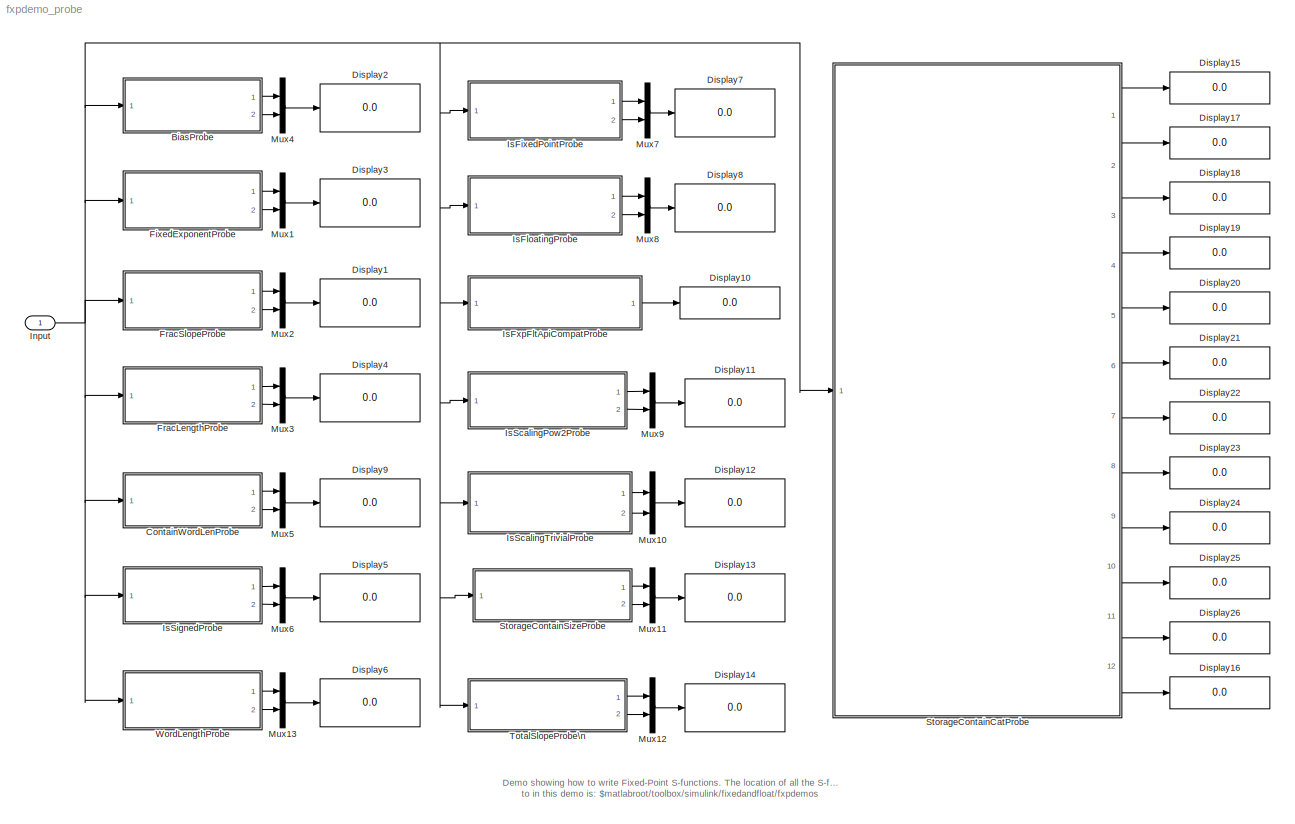
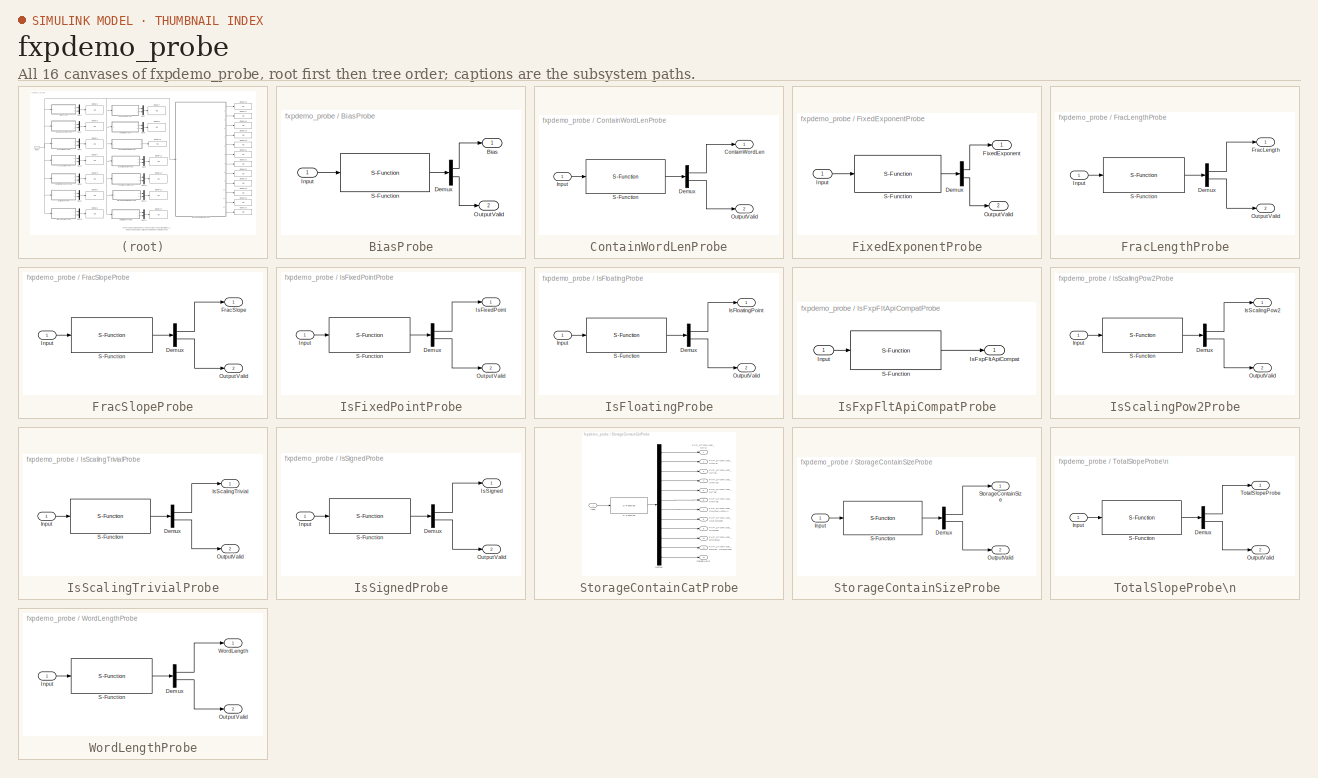
[diagram: thumbnail index - all 16 canvases of the model, root first then tree order]
MODEL fxpdemo_probe
KIND model
CONFIG AbsTol = auto
CONFIG FixedStep = auto
CONFIG MaxStep = auto
CONFIG MinStep = auto
CONFIG RelTol = 1e-3
CONFIG Solver = ode45
CONFIG SolverMode = Auto
CONFIG StartTime = 0.0
CONFIG StopTime = 10.0
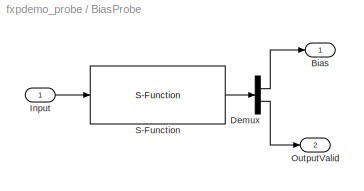
BLOCK [SubSystem] BiasProbe
  Ports = [1, 2]
  TreatAsAtomicUnit = off
BLOCK [Outport] BiasProbe/Bias
BLOCK [Demux] BiasProbe/Demux
  Outputs = 2
  Ports = [1, 2]
BLOCK [Inport] BiasProbe/Input
BLOCK [Outport] BiasProbe/OutputValid
  Port = 2
BLOCK [S-Function] BiasProbe/S-Function
  FunctionName = sfun_user_fxp_BiasProbe
  Ports = [1, 1]
BLOCK [SubSystem] ContainWordLenProbe
  Ports = [1, 2]
  TreatAsAtomicUnit = off
BLOCK [Outport] ContainWordLenProbe/ContainWordLen
BLOCK [Demux] ContainWordLenProbe/Demux
  Outputs = 2
  Ports = [1, 2]
BLOCK [Inport] ContainWordLenProbe/Input
BLOCK [Outport] ContainWordLenProbe/OutputValid
  Port = 2
BLOCK [S-Function] ContainWordLenProbe/S-Function
  FunctionName = sfun_user_fxp_ContainWordLenProbe
  Ports = [1, 1]
BLOCK [Display] Display1
  Decimation = 1
  Ports = [1]
BLOCK [Display] Display10
  Decimation = 1
  Ports = [1]
BLOCK [Display] Display11
  Decimation = 1
  Ports = [1]
BLOCK [Display] Display12
  Decimation = 1
  Ports = [1]
BLOCK [Display] Display13
  Decimation = 1
  Ports = [1]
BLOCK [Display] Display14
  Decimation = 1
  Ports = [1]
BLOCK [Display] Display15
  Decimation = 1
  Ports = [1]
BLOCK [Display] Display16
  Decimation = 1
  Ports = [1]
BLOCK [Display] Display17
  Decimation = 1
  Ports = [1]
BLOCK [Display] Display18
  Decimation = 1
  Ports = [1]
BLOCK [Display] Display19
  Decimation = 1
  Ports = [1]
BLOCK [Display] Display2
  Decimation = 1
  Ports = [1]
BLOCK [Display] Display20
  Decimation = 1
  Ports = [1]
BLOCK [Display] Display21
  Decimation = 1
  Ports = [1]
BLOCK [Display] Display22
  Decimation = 1
  Ports = [1]
BLOCK [Display] Display23
  Decimation = 1
  Ports = [1]
BLOCK [Display] Display24
  Decimation = 1
  Ports = [1]
BLOCK [Display] Display25
  Decimation = 1
  Ports = [1]
BLOCK [Display] Display26
  Decimation = 1
  Ports = [1]
BLOCK [Display] Display3
  Decimation = 1
  Ports = [1]
BLOCK [Display] Display4
  Decimation = 1
  Ports = [1]
BLOCK [Display] Display5
  Decimation = 1
  Ports = [1]
BLOCK [Display] Display6
  Decimation = 1
  Ports = [1]
BLOCK [Display] Display7
  Decimation = 1
  Ports = [1]
BLOCK [Display] Display8
  Decimation = 1
  Ports = [1]
BLOCK [Display] Display9
  Decimation = 1
  Ports = [1]
BLOCK [SubSystem] FixedExponentProbe
  Ports = [1, 2]
  TreatAsAtomicUnit = off
BLOCK [Demux] FixedExponentProbe/Demux
  Outputs = 2
  Ports = [1, 2]
BLOCK [Outport] FixedExponentProbe/FixedExponent
BLOCK [Inport] FixedExponentProbe/Input
BLOCK [Outport] FixedExponentProbe/OutputValid
  Port = 2
BLOCK [S-Function] FixedExponentProbe/S-Function
  FunctionName = sfun_user_fxp_FixedExponentProbe
  Ports = [1, 1]
BLOCK [SubSystem] FracLengthProbe
  Ports = [1, 2]
  TreatAsAtomicUnit = off
BLOCK [Demux] FracLengthProbe/Demux
  Outputs = 2
  Ports = [1, 2]
BLOCK [Outport] FracLengthProbe/FracLength
BLOCK [Inport] FracLengthProbe/Input
BLOCK [Outport] FracLengthProbe/OutputValid
  Port = 2
BLOCK [S-Function] FracLengthProbe/S-Function
  FunctionName = sfun_user_fxp_FracLengthProbe
  Ports = [1, 1]
BLOCK [SubSystem] FracSlopeProbe
  Ports = [1, 2]
  TreatAsAtomicUnit = off
BLOCK [Demux] FracSlopeProbe/Demux
  Outputs = 2
  Ports = [1, 2]
BLOCK [Outport] FracSlopeProbe/FracSlope
BLOCK [Inport] FracSlopeProbe/Input
BLOCK [Outport] FracSlopeProbe/OutputValid
  Port = 2
BLOCK [S-Function] FracSlopeProbe/S-Function
  FunctionName = sfun_user_fxp_FracSlopeProbe
  Ports = [1, 1]
BLOCK [Inport] Input
  DataType = Specify via dialog
  OutDataType = sfix(33)
  OutScaling = [1.1*2^-3 10]
  ShowAdditionalParam = on
BLOCK [SubSystem] IsFixedPointProbe
  Ports = [1, 2]
  TreatAsAtomicUnit = off
BLOCK [Demux] IsFixedPointProbe/Demux
  Outputs = 2
  Ports = [1, 2]
BLOCK [Inport] IsFixedPointProbe/Input
BLOCK [Outport] IsFixedPointProbe/IsFixedPoint
BLOCK [Outport] IsFixedPointProbe/OutputValid
  Port = 2
BLOCK [S-Function] IsFixedPointProbe/S-Function
  FunctionName = sfun_user_fxp_IsFixedPointProbe
  Ports = [1, 1]
BLOCK [SubSystem] IsFloatingProbe
  Ports = [1, 2]
  TreatAsAtomicUnit = off
BLOCK [Demux] IsFloatingProbe/Demux
  Outputs = 2
  Ports = [1, 2]
BLOCK [Inport] IsFloatingProbe/Input
BLOCK [Outport] IsFloatingProbe/IsFloatingPoint
BLOCK [Outport] IsFloatingProbe/OutputValid
  Port = 2
BLOCK [S-Function] IsFloatingProbe/S-Function
  FunctionName = sfun_user_fxp_IsFloatingPointProbe
  Ports = [1, 1]
BLOCK [SubSystem] IsFxpFltApiCompatProbe
  Ports = [1, 1]
  TreatAsAtomicUnit = off
BLOCK [Inport] IsFxpFltApiCompatProbe/Input
BLOCK [Outport] IsFxpFltApiCompatProbe/IsFxpFltApiCompat
BLOCK [S-Function] IsFxpFltApiCompatProbe/S-Function
  FunctionName = sfun_user_fxp_IsFxpFltApiCompatProbe
  Ports = [1, 1]
BLOCK [SubSystem] IsScalingPow2Probe
  Ports = [1, 2]
  TreatAsAtomicUnit = off
BLOCK [Demux] IsScalingPow2Probe/Demux
  Outputs = 2
  Ports = [1, 2]
BLOCK [Inport] IsScalingPow2Probe/Input
BLOCK [Outport] IsScalingPow2Probe/IsScalingPow2
BLOCK [Outport] IsScalingPow2Probe/OutputValid
  Port = 2
BLOCK [S-Function] IsScalingPow2Probe/S-Function
  FunctionName = sfun_user_fxp_IsScalingPow2Probe
  Ports = [1, 1]
BLOCK [SubSystem] IsScalingTrivialProbe
  Ports = [1, 2]
  TreatAsAtomicUnit = off
BLOCK [Demux] IsScalingTrivialProbe/Demux
  Outputs = 2
  Ports = [1, 2]
BLOCK [Inport] IsScalingTrivialProbe/Input
BLOCK [Outport] IsScalingTrivialProbe/IsScalingTrivial
BLOCK [Outport] IsScalingTrivialProbe/OutputValid
  Port = 2
BLOCK [S-Function] IsScalingTrivialProbe/S-Function
  FunctionName = sfun_user_fxp_IsScalingTrivialProbe
  Ports = [1, 1]
BLOCK [SubSystem] IsSignedProbe
  Ports = [1, 2]
  TreatAsAtomicUnit = off
BLOCK [Demux] IsSignedProbe/Demux
  Outputs = 2
  Ports = [1, 2]
BLOCK [Inport] IsSignedProbe/Input
BLOCK [Outport] IsSignedProbe/IsSigned
BLOCK [Outport] IsSignedProbe/OutputValid
  Port = 2
BLOCK [S-Function] IsSignedProbe/S-Function
  FunctionName = sfun_user_fxp_IsSignedProbe
  Ports = [1, 1]
BLOCK [Mux] Mux1
  DisplayOption = bar
  Inputs = 2
  Ports = [2, 1]
BLOCK [Mux] Mux10
  DisplayOption = bar
  Inputs = 2
  Ports = [2, 1]
BLOCK [Mux] Mux11
  DisplayOption = bar
  Inputs = 2
  Ports = [2, 1]
BLOCK [Mux] Mux12
  DisplayOption = bar
  Inputs = 2
  Ports = [2, 1]
BLOCK [Mux] Mux13
  DisplayOption = bar
  Inputs = 2
  Ports = [2, 1]
BLOCK [Mux] Mux2
  DisplayOption = bar
  Inputs = 2
  Ports = [2, 1]
BLOCK [Mux] Mux3
  DisplayOption = bar
  Inputs = 2
  Ports = [2, 1]
BLOCK [Mux] Mux4
  DisplayOption = bar
  Inputs = 2
  Ports = [2, 1]
BLOCK [Mux] Mux5
  DisplayOption = bar
  Inputs = 2
  Ports = [2, 1]
BLOCK [Mux] Mux6
  DisplayOption = bar
  Inputs = 2
  Ports = [2, 1]
BLOCK [Mux] Mux7
  DisplayOption = bar
  Inputs = 2
  Ports = [2, 1]
BLOCK [Mux] Mux8
  DisplayOption = bar
  Inputs = 2
  Ports = [2, 1]
BLOCK [Mux] Mux9
  DisplayOption = bar
  Inputs = 2
  Ports = [2, 1]
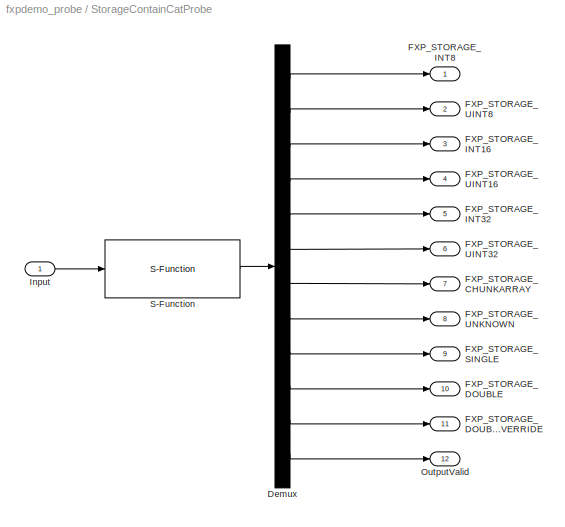
BLOCK [SubSystem] StorageContainCatProbe
  Ports = [1, 12]
  TreatAsAtomicUnit = off
BLOCK [Demux] StorageContainCatProbe/Demux
  Outputs = 12
  Ports = [1, 12]
BLOCK [Outport] StorageContainCatProbe/FXP_STORAGE_CHUNKARRAY
  Port = 7
BLOCK [Outport] StorageContainCatProbe/FXP_STORAGE_DOUBLE
  Port = 10
BLOCK [Outport] StorageContainCatProbe/FXP_STORAGE_DOUBLESOVERRIDE
  Port = 11
BLOCK [Outport] StorageContainCatProbe/FXP_STORAGE_INT16
  Port = 3
BLOCK [Outport] StorageContainCatProbe/FXP_STORAGE_INT32
  Port = 5
BLOCK [Outport] StorageContainCatProbe/FXP_STORAGE_INT8
BLOCK [Outport] StorageContainCatProbe/FXP_STORAGE_SINGLE
  Port = 9
BLOCK [Outport] StorageContainCatProbe/FXP_STORAGE_UINT16
  Port = 4
BLOCK [Outport] StorageContainCatProbe/FXP_STORAGE_UINT32
  Port = 6
BLOCK [Outport] StorageContainCatProbe/FXP_STORAGE_UINT8
  Port = 2
BLOCK [Outport] StorageContainCatProbe/FXP_STORAGE_UNKNOWN
  Port = 8
BLOCK [Inport] StorageContainCatProbe/Input
BLOCK [Outport] StorageContainCatProbe/OutputValid
  Port = 12
BLOCK [S-Function] StorageContainCatProbe/S-Function
  FunctionName = sfun_user_fxp_StorageContainCatProbe
  Ports = [1, 1]
BLOCK [SubSystem] StorageContainSizeProbe
  Ports = [1, 2]
  TreatAsAtomicUnit = off
BLOCK [Demux] StorageContainSizeProbe/Demux
  Outputs = 2
  Ports = [1, 2]
BLOCK [Inport] StorageContainSizeProbe/Input
BLOCK [Outport] StorageContainSizeProbe/OutputValid
  Port = 2
BLOCK [S-Function] StorageContainSizeProbe/S-Function
  FunctionName = sfun_user_fxp_StorageContainSizeProbe
  Ports = [1, 1]
BLOCK [Outport] StorageContainSizeProbe/StorageContainSize
BLOCK [SubSystem] TotalSlopeProbe\n
  Ports = [1, 2]
  TreatAsAtomicUnit = off
BLOCK [Demux] TotalSlopeProbe\n/Demux
  Outputs = 2
  Ports = [1, 2]
BLOCK [Inport] TotalSlopeProbe\n/Input
BLOCK [Outport] TotalSlopeProbe\n/OutputValid
  Port = 2
BLOCK [S-Function] TotalSlopeProbe\n/S-Function
  FunctionName = sfun_user_fxp_TotalSlopeProbe
  Ports = [1, 1]
BLOCK [Outport] TotalSlopeProbe\n/TotalSlopeProbe
BLOCK [SubSystem] WordLengthProbe
  Ports = [1, 2]
  TreatAsAtomicUnit = off
BLOCK [Demux] WordLengthProbe/Demux
  Outputs = 2
  Ports = [1, 2]
BLOCK [Inport] WordLengthProbe/Input
BLOCK [Outport] WordLengthProbe/OutputValid
  Port = 2
BLOCK [S-Function] WordLengthProbe/S-Function
  FunctionName = sfun_user_fxp_WordLengthProbe
  Ports = [1, 1]
BLOCK [Outport] WordLengthProbe/WordLength
ANNOTATION (root): Demo showing how to write Fixed-Point S-functions. The location of all the S-functions referred\nto in this demo is: $matlabroot/toolbox/simulink/fixedandfloat/fxpdemos
LINE BiasProbe/Demux:1 -> BiasProbe/Bias:1
LINE BiasProbe/Demux:2 -> BiasProbe/OutputValid:1
LINE BiasProbe/Input:1 -> BiasProbe/S-Function:1
LINE BiasProbe/S-Function:1 -> BiasProbe/Demux:1
LINE BiasProbe:1 -> Mux4:1
LINE BiasProbe:2 -> Mux4:2
LINE ContainWordLenProbe/Demux:1 -> ContainWordLenProbe/ContainWordLen:1
LINE ContainWordLenProbe/Demux:2 -> ContainWordLenProbe/OutputValid:1
LINE ContainWordLenProbe/Input:1 -> ContainWordLenProbe/S-Function:1
LINE ContainWordLenProbe/S-Function:1 -> ContainWordLenProbe/Demux:1
LINE ContainWordLenProbe:1 -> Mux5:1
LINE ContainWordLenProbe:2 -> Mux5:2
LINE FixedExponentProbe/Demux:1 -> FixedExponentProbe/FixedExponent:1
LINE FixedExponentProbe/Demux:2 -> FixedExponentProbe/OutputValid:1
LINE FixedExponentProbe/Input:1 -> FixedExponentProbe/S-Function:1
LINE FixedExponentProbe/S-Function:1 -> FixedExponentProbe/Demux:1
LINE FixedExponentProbe:1 -> Mux1:1
LINE FixedExponentProbe:2 -> Mux1:2
LINE FracLengthProbe/Demux:1 -> FracLengthProbe/FracLength:1
LINE FracLengthProbe/Demux:2 -> FracLengthProbe/OutputValid:1
LINE FracLengthProbe/Input:1 -> FracLengthProbe/S-Function:1
LINE FracLengthProbe/S-Function:1 -> FracLengthProbe/Demux:1
LINE FracLengthProbe:1 -> Mux3:1
LINE FracLengthProbe:2 -> Mux3:2
LINE FracSlopeProbe/Demux:1 -> FracSlopeProbe/FracSlope:1
LINE FracSlopeProbe/Demux:2 -> FracSlopeProbe/OutputValid:1
LINE FracSlopeProbe/Input:1 -> FracSlopeProbe/S-Function:1
LINE FracSlopeProbe/S-Function:1 -> FracSlopeProbe/Demux:1
LINE FracSlopeProbe:1 -> Mux2:1
LINE FracSlopeProbe:2 -> Mux2:2
NET Input:1 -> BiasProbe:1, ContainWordLenProbe:1, FixedExponentProbe:1, FracLengthProbe:1, FracSlopeProbe:1, IsFixedPointProbe:1, IsFloatingProbe:1, IsFxpFltApiCompatProbe:1, IsScalingPow2Probe:1, IsScalingTrivialProbe:1, IsSignedProbe:1, StorageContainCatProbe:1, StorageContainSizeProbe:1, TotalSlopeProbe\n:1, WordLengthProbe:1
LINE IsFixedPointProbe/Demux:1 -> IsFixedPointProbe/IsFixedPoint:1
LINE IsFixedPointProbe/Demux:2 -> IsFixedPointProbe/OutputValid:1
LINE IsFixedPointProbe/Input:1 -> IsFixedPointProbe/S-Function:1
LINE IsFixedPointProbe/S-Function:1 -> IsFixedPointProbe/Demux:1
LINE IsFixedPointProbe:1 -> Mux7:1
LINE IsFixedPointProbe:2 -> Mux7:2
LINE IsFloatingProbe/Demux:1 -> IsFloatingProbe/IsFloatingPoint:1
LINE IsFloatingProbe/Demux:2 -> IsFloatingProbe/OutputValid:1
LINE IsFloatingProbe/Input:1 -> IsFloatingProbe/S-Function:1
LINE IsFloatingProbe/S-Function:1 -> IsFloatingProbe/Demux:1
LINE IsFloatingProbe:1 -> Mux8:1
LINE IsFloatingProbe:2 -> Mux8:2
LINE IsFxpFltApiCompatProbe/Input:1 -> IsFxpFltApiCompatProbe/S-Function:1
LINE IsFxpFltApiCompatProbe/S-Function:1 -> IsFxpFltApiCompatProbe/IsFxpFltApiCompat:1
LINE IsFxpFltApiCompatProbe:1 -> Display10:1
LINE IsScalingPow2Probe/Demux:1 -> IsScalingPow2Probe/IsScalingPow2:1
LINE IsScalingPow2Probe/Demux:2 -> IsScalingPow2Probe/OutputValid:1
LINE IsScalingPow2Probe/Input:1 -> IsScalingPow2Probe/S-Function:1
LINE IsScalingPow2Probe/S-Function:1 -> IsScalingPow2Probe/Demux:1
LINE IsScalingPow2Probe:1 -> Mux9:1
LINE IsScalingPow2Probe:2 -> Mux9:2
LINE IsScalingTrivialProbe/Demux:1 -> IsScalingTrivialProbe/IsScalingTrivial:1
LINE IsScalingTrivialProbe/Demux:2 -> IsScalingTrivialProbe/OutputValid:1
LINE IsScalingTrivialProbe/Input:1 -> IsScalingTrivialProbe/S-Function:1
LINE IsScalingTrivialProbe/S-Function:1 -> IsScalingTrivialProbe/Demux:1
LINE IsScalingTrivialProbe:1 -> Mux10:1
LINE IsScalingTrivialProbe:2 -> Mux10:2
LINE IsSignedProbe/Demux:1 -> IsSignedProbe/IsSigned:1
LINE IsSignedProbe/Demux:2 -> IsSignedProbe/OutputValid:1
LINE IsSignedProbe/Input:1 -> IsSignedProbe/S-Function:1
LINE IsSignedProbe/S-Function:1 -> IsSignedProbe/Demux:1
LINE IsSignedProbe:1 -> Mux6:1
LINE IsSignedProbe:2 -> Mux6:2
LINE Mux10:1 -> Display12:1
LINE Mux11:1 -> Display13:1
LINE Mux12:1 -> Display14:1
LINE Mux13:1 -> Display6:1
LINE Mux1:1 -> Display3:1
LINE Mux2:1 -> Display1:1
LINE Mux3:1 -> Display4:1
LINE Mux4:1 -> Display2:1
LINE Mux5:1 -> Display9:1
LINE Mux6:1 -> Display5:1
LINE Mux7:1 -> Display7:1
LINE Mux8:1 -> Display8:1
LINE Mux9:1 -> Display11:1
LINE StorageContainCatProbe/Demux:1 -> StorageContainCatProbe/FXP_STORAGE_INT8:1
LINE StorageContainCatProbe/Demux:10 -> StorageContainCatProbe/FXP_STORAGE_DOUBLE:1
LINE StorageContainCatProbe/Demux:11 -> StorageContainCatProbe/FXP_STORAGE_DOUBLESOVERRIDE:1
LINE StorageContainCatProbe/Demux:12 -> StorageContainCatProbe/OutputValid:1
LINE StorageContainCatProbe/Demux:2 -> StorageContainCatProbe/FXP_STORAGE_UINT8:1
LINE StorageContainCatProbe/Demux:3 -> StorageContainCatProbe/FXP_STORAGE_INT16:1
LINE StorageContainCatProbe/Demux:4 -> StorageContainCatProbe/FXP_STORAGE_UINT16:1
LINE StorageContainCatProbe/Demux:5 -> StorageContainCatProbe/FXP_STORAGE_INT32:1
LINE StorageContainCatProbe/Demux:6 -> StorageContainCatProbe/FXP_STORAGE_UINT32:1
LINE StorageContainCatProbe/Demux:7 -> StorageContainCatProbe/FXP_STORAGE_CHUNKARRAY:1
LINE StorageContainCatProbe/Demux:8 -> StorageContainCatProbe/FXP_STORAGE_UNKNOWN:1
LINE StorageContainCatProbe/Demux:9 -> StorageContainCatProbe/FXP_STORAGE_SINGLE:1
LINE StorageContainCatProbe/Input:1 -> StorageContainCatProbe/S-Function:1
LINE StorageContainCatProbe/S-Function:1 -> StorageContainCatProbe/Demux:1
LINE StorageContainCatProbe:1 -> Display15:1
LINE StorageContainCatProbe:10 -> Display25:1
LINE StorageContainCatProbe:11 -> Display26:1
LINE StorageContainCatProbe:12 -> Display16:1
LINE StorageContainCatProbe:2 -> Display17:1
LINE StorageContainCatProbe:3 -> Display18:1
LINE StorageContainCatProbe:4 -> Display19:1
LINE StorageContainCatProbe:5 -> Display20:1
LINE StorageContainCatProbe:6 -> Display21:1
LINE StorageContainCatProbe:7 -> Display22:1
LINE StorageContainCatProbe:8 -> Display23:1
LINE StorageContainCatProbe:9 -> Display24:1
LINE StorageContainSizeProbe/Demux:1 -> StorageContainSizeProbe/StorageContainSize:1
LINE StorageContainSizeProbe/Demux:2 -> StorageContainSizeProbe/OutputValid:1
LINE StorageContainSizeProbe/Input:1 -> StorageContainSizeProbe/S-Function:1
LINE StorageContainSizeProbe/S-Function:1 -> StorageContainSizeProbe/Demux:1
LINE StorageContainSizeProbe:1 -> Mux11:1
LINE StorageContainSizeProbe:2 -> Mux11:2
LINE TotalSlopeProbe\n/Demux:1 -> TotalSlopeProbe\n/TotalSlopeProbe:1
LINE TotalSlopeProbe\n/Demux:2 -> TotalSlopeProbe\n/OutputValid:1
LINE TotalSlopeProbe\n/Input:1 -> TotalSlopeProbe\n/S-Function:1
LINE TotalSlopeProbe\n/S-Function:1 -> TotalSlopeProbe\n/Demux:1
LINE TotalSlopeProbe\n:1 -> Mux12:1
LINE TotalSlopeProbe\n:2 -> Mux12:2
LINE WordLengthProbe/Demux:1 -> WordLengthProbe/WordLength:1
LINE WordLengthProbe/Demux:2 -> WordLengthProbe/OutputValid:1
LINE WordLengthProbe/Input:1 -> WordLengthProbe/S-Function:1
LINE WordLengthProbe/S-Function:1 -> WordLengthProbe/Demux:1
LINE WordLengthProbe:1 -> Mux13:1
LINE WordLengthProbe:2 -> Mux13:2
note: NET lines group one-source signal fan-out (src -> all destinations, sorted); 1:1 wires keep LINE
